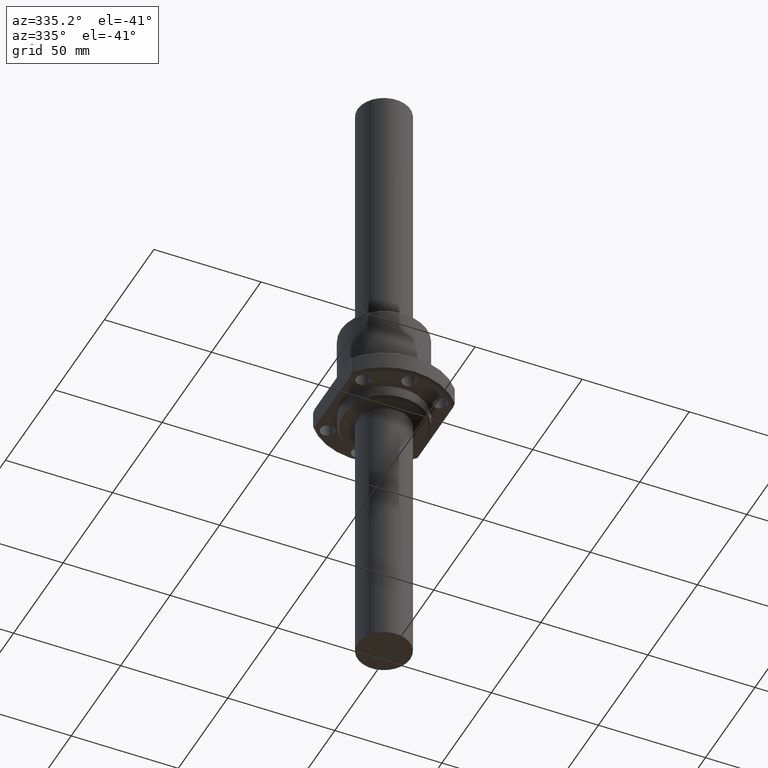
[diagram: clean part render]
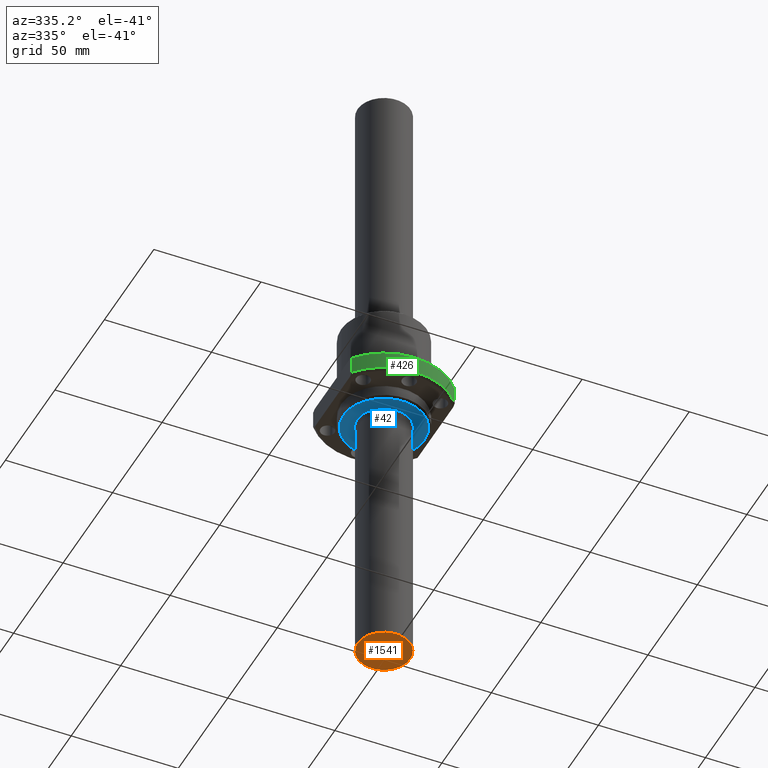
[diagram: same view with three faces highlighted in distinct colors, each labeled with its STEP entity id]
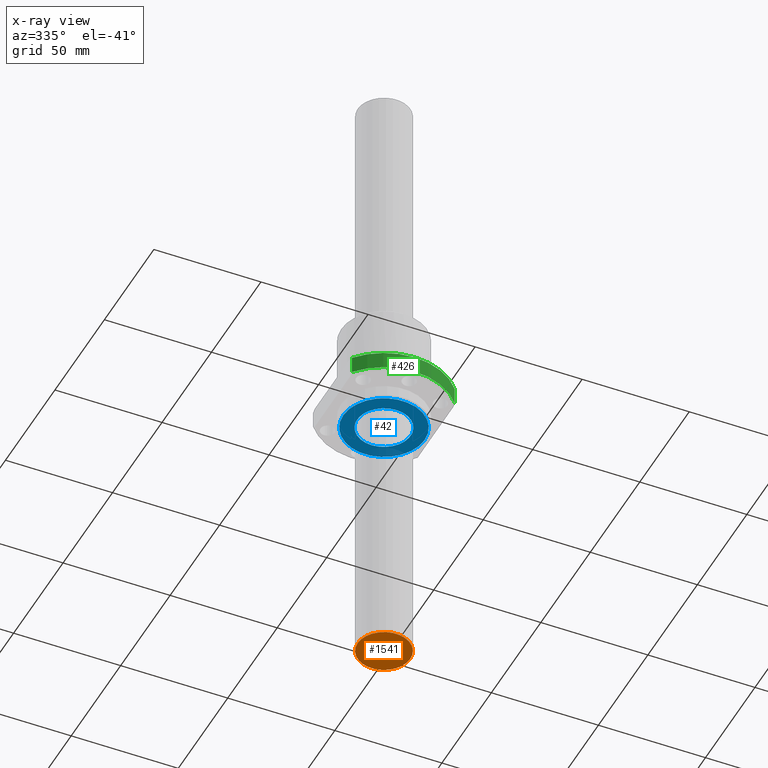
[diagram: x-ray of the same camera — body ghosted, the three highlighted faces saturated]
A machine part, auxiliary view with three faces highlighted in distinct colors.
The next image is the same camera in x-ray (body ghosted, the three faces saturated) — at least one of them is partly hidden behind the body in this view.
Their STEP definitions:

[orange] entity #1541 — the highlighted planar face has unit normal (0, 0, -1).
#19 = ORIENTED_EDGE ( 'NONE', *, *, #1188, .T. ) ;
#206 = VERTEX_POINT ( 'NONE', #611 ) ;
#224 = AXIS2_PLACEMENT_3D ( 'NONE', #381, #379, #376 ) ;
#264 = DIRECTION ( 'NONE',  ( 1.000000000000000000, 0.0000000000000000000, 0.0000000000000000000 ) ) ;
#272 = DIRECTION ( 'NONE',  ( -0.0000000000000000000, -0.0000000000000000000, -1.000000000000000000 ) ) ;
#275 = CARTESIAN_POINT ( 'NONE',  ( -12.30000000000000100, 1.506315562951244400E-015, -300.0000000000000000 ) ) ;
#278 = CARTESIAN_POINT ( 'NONE',  ( 0.0000000000000000000, 0.0000000000000000000, -300.0000000000000000 ) ) ;
#376 = DIRECTION ( 'NONE',  ( 1.000000000000000000, 0.0000000000000000000, 0.0000000000000000000 ) ) ;
#379 = DIRECTION ( 'NONE',  ( -0.0000000000000000000, -0.0000000000000000000, -1.000000000000000000 ) ) ;
#381 = CARTESIAN_POINT ( 'NONE',  ( 0.0000000000000000000, 0.0000000000000000000, -300.0000000000000000 ) ) ;
#611 = CARTESIAN_POINT ( 'NONE',  ( 12.30000000000000100, 0.0000000000000000000, -300.0000000000000000 ) ) ;
#755 = AXIS2_PLACEMENT_3D ( 'NONE', #1778, #1774, #1773 ) ;
#832 = FACE_OUTER_BOUND ( 'NONE', #1659, .T. ) ;
#1188 = EDGE_CURVE ( 'NONE', #1330, #206, #1718, .T. ) ;
#1239 = AXIS2_PLACEMENT_3D ( 'NONE', #278, #272, #264 ) ;
#1296 = ORIENTED_EDGE ( 'NONE', *, *, #1333, .T. ) ;
#1330 = VERTEX_POINT ( 'NONE', #275 ) ;
#1333 = EDGE_CURVE ( 'NONE', #206, #1330, #1550, .T. ) ;
#1541 = ADVANCED_FACE ( 'NONE', ( #832 ), #1787, .T. ) ;
#1550 = CIRCLE ( 'NONE', #1239, 12.30000000000000100 ) ;
#1659 = EDGE_LOOP ( 'NONE', ( #1296, #19 ) ) ;
#1718 = CIRCLE ( 'NONE', #224, 12.30000000000000100 ) ;
#1773 = DIRECTION ( 'NONE',  ( -1.000000000000000000, 0.0000000000000000000, 0.0000000000000000000 ) ) ;
#1774 = DIRECTION ( 'NONE',  ( 0.0000000000000000000, 0.0000000000000000000, -1.000000000000000000 ) ) ;
#1778 = CARTESIAN_POINT ( 'NONE',  ( 12.44760000000000000, -12.44760000000000000, -300.0000000000000000 ) ) ;
#1787 = PLANE ( 'NONE',  #755 ) ;

[blue] entity #42 — the highlighted planar face has unit normal (0, 0, 1).
#42 = ADVANCED_FACE ( 'NONE', ( #1691, #1439 ), #807, .F. ) ;
#74 = AXIS2_PLACEMENT_3D ( 'NONE', #313, #309, #283 ) ;
#85 = CIRCLE ( 'NONE', #939, 18.99999000000000000 ) ;
#249 = VERTEX_POINT ( 'NONE', #466 ) ;
#283 = DIRECTION ( 'NONE',  ( 0.0000000000000000000, -1.000000000000000000, -2.775557561562891400E-016 ) ) ;
#284 = CIRCLE ( 'NONE', #74, 12.50000000000000000 ) ;
#300 = EDGE_CURVE ( 'NONE', #249, #1653, #284, .T. ) ;
#309 = DIRECTION ( 'NONE',  ( 0.0000000000000000000, -2.775557561562891400E-016, 1.000000000000000000 ) ) ;
#313 = CARTESIAN_POINT ( 'NONE',  ( 0.0000000000000000000, -1.360023213492489600E-014, 0.0000000000000000000 ) ) ;
#364 = DIRECTION ( 'NONE',  ( 0.0000000000000000000, -1.000000000000000000, -2.775557561562891400E-016 ) ) ;
#365 = DIRECTION ( 'NONE',  ( 0.0000000000000000000, -2.775557561562891400E-016, 1.000000000000000000 ) ) ;
#374 = CARTESIAN_POINT ( 'NONE',  ( 0.0000000000000000000, -1.360023213492489600E-014, 0.0000000000000000000 ) ) ;
#466 = CARTESIAN_POINT ( 'NONE',  ( 1.530808498934191500E-015, 12.49999999999998800, 3.469446951953614200E-015 ) ) ;
#475 = ORIENTED_EDGE ( 'NONE', *, *, #1118, .F. ) ;
#498 = DIRECTION ( 'NONE',  ( -1.000000000000000000, 0.0000000000000000000, 0.0000000000000000000 ) ) ;
#500 = DIRECTION ( 'NONE',  ( 0.0000000000000000000, 0.0000000000000000000, -1.000000000000000000 ) ) ;
#505 = CARTESIAN_POINT ( 'NONE',  ( 0.0000000000000000000, 0.0000000000000000000, 0.0000000000000000000 ) ) ;
#567 = AXIS2_PLACEMENT_3D ( 'NONE', #505, #500, #498 ) ;
#655 = CARTESIAN_POINT ( 'NONE',  ( 18.99999000000000000, 2.388060033690539800E-015, 0.0000000000000000000 ) ) ;
#658 = ORIENTED_EDGE ( 'NONE', *, *, #1196, .F. ) ;
#719 = DIRECTION ( 'NONE',  ( -1.000000000000000000, 0.0000000000000000000, 0.0000000000000000000 ) ) ;
#720 = DIRECTION ( 'NONE',  ( 0.0000000000000000000, 0.0000000000000000000, -1.000000000000000000 ) ) ;
#721 = CARTESIAN_POINT ( 'NONE',  ( 0.0000000000000000000, 0.0000000000000000000, 0.0000000000000000000 ) ) ;
#728 = CARTESIAN_POINT ( 'NONE',  ( -18.99999000000000000, 0.0000000000000000000, 0.0000000000000000000 ) ) ;
#770 = DIRECTION ( 'NONE',  ( -1.000000000000000000, 0.0000000000000000000, 0.0000000000000000000 ) ) ;
#777 = DIRECTION ( 'NONE',  ( 0.0000000000000000000, 0.0000000000000000000, -1.000000000000000000 ) ) ;
#784 = ORIENTED_EDGE ( 'NONE', *, *, #300, .F. ) ;
#787 = CARTESIAN_POINT ( 'NONE',  ( 19.22798987999999900, -19.22798987999999900, 0.0000000000000000000 ) ) ;
#807 = PLANE ( 'NONE',  #1486 ) ;
#892 = VERTEX_POINT ( 'NONE', #728 ) ;
#897 = EDGE_CURVE ( 'NONE', #892, #971, #85, .T. ) ;
#899 = EDGE_LOOP ( 'NONE', ( #658, #784 ) ) ;
#939 = AXIS2_PLACEMENT_3D ( 'NONE', #721, #720, #719 ) ;
#971 = VERTEX_POINT ( 'NONE', #655 ) ;
#997 = ORIENTED_EDGE ( 'NONE', *, *, #897, .F. ) ;
#1118 = EDGE_CURVE ( 'NONE', #971, #892, #1779, .T. ) ;
#1196 = EDGE_CURVE ( 'NONE', #1653, #249, #1750, .T. ) ;
#1356 = AXIS2_PLACEMENT_3D ( 'NONE', #374, #365, #364 ) ;
#1439 = FACE_OUTER_BOUND ( 'NONE', #1756, .T. ) ;
#1486 = AXIS2_PLACEMENT_3D ( 'NONE', #787, #777, #770 ) ;
#1653 = VERTEX_POINT ( 'NONE', #1703 ) ;
#1691 = FACE_BOUND ( 'NONE', #899, .T. ) ;
#1703 = CARTESIAN_POINT ( 'NONE',  ( 0.0000000000000000000, -12.50000000000001400, -3.469446951953614200E-015 ) ) ;
#1750 = CIRCLE ( 'NONE', #1356, 12.50000000000000000 ) ;
#1756 = EDGE_LOOP ( 'NONE', ( #997, #475 ) ) ;
#1779 = CIRCLE ( 'NONE', #567, 18.99999000000000000 ) ;

[green] entity #426 — the highlighted cylindrical surface (partial cylindrical patch) has radius 31 mm, axis along (0, 0, -1).
#32 = CIRCLE ( 'NONE', #707, 30.99999979999999800 ) ;
#46 = ORIENTED_EDGE ( 'NONE', *, *, #1150, .F. ) ;
#130 = CARTESIAN_POINT ( 'NONE',  ( 24.00000000000000000, -19.62141671218366000, -14.99999390011035400 ) ) ;
#426 = ADVANCED_FACE ( 'NONE', ( #1568 ), #1116, .T. ) ;
#427 = VERTEX_POINT ( 'NONE', #1595 ) ;
#438 = DIRECTION ( 'NONE',  ( 0.0000000000000000000, 0.0000000000000000000, 1.000000000000000000 ) ) ;
#439 = CARTESIAN_POINT ( 'NONE',  ( -24.00000000000000000, -19.62141686999999700, -10.99999399999999900 ) ) ;
#440 = LINE ( 'NONE', #439, #484 ) ;
#484 = VECTOR ( 'NONE', #438, 1000.000000000000000 ) ;
#536 = DIRECTION ( 'NONE',  ( 1.000000000000000000, 0.0000000000000000000, 0.0000000000000000000 ) ) ;
#539 = DIRECTION ( 'NONE',  ( 0.0000000000000000000, 0.0000000000000000000, 1.000000000000000000 ) ) ;
#542 = CARTESIAN_POINT ( 'NONE',  ( 0.0000000000000000000, 0.0000000000000000000, -6.999994199999999700 ) ) ;
#559 = CARTESIAN_POINT ( 'NONE',  ( 24.00000000000000000, -19.62141685811987600, -6.999994192370172300 ) ) ;
#706 = CARTESIAN_POINT ( 'NONE',  ( -24.00000000000000000, -19.62141671218366000, -14.99999400000007200 ) ) ;
#707 = AXIS2_PLACEMENT_3D ( 'NONE', #542, #539, #536 ) ;
#768 = VECTOR ( 'NONE', #1633, 1000.000000000000000 ) ;
#823 = AXIS2_PLACEMENT_3D ( 'NONE', #1801, #1799, #1798 ) ;
#908 = VERTEX_POINT ( 'NONE', #706 ) ;
#1021 = VERTEX_POINT ( 'NONE', #559 ) ;
#1030 = ORIENTED_EDGE ( 'NONE', *, *, #1749, .F. ) ;
#1041 = EDGE_CURVE ( 'NONE', #427, #1021, #32, .T. ) ;
#1116 = CYLINDRICAL_SURFACE ( 'NONE', #1503, 30.99999979999999800 ) ;
#1150 = EDGE_CURVE ( 'NONE', #908, #427, #440, .T. ) ;
#1323 = EDGE_LOOP ( 'NONE', ( #1745, #46, #1767, #1030 ) ) ;
#1355 = CIRCLE ( 'NONE', #823, 30.99999979999999800 ) ;
#1383 = VERTEX_POINT ( 'NONE', #130 ) ;
#1503 = AXIS2_PLACEMENT_3D ( 'NONE', #1614, #1601, #1598 ) ;
#1525 = EDGE_CURVE ( 'NONE', #908, #1383, #1355, .T. ) ;
#1568 = FACE_OUTER_BOUND ( 'NONE', #1323, .T. ) ;
#1595 = CARTESIAN_POINT ( 'NONE',  ( -24.00000000000000000, -19.62141671218366000, -6.999994199889681700 ) ) ;
#1598 = DIRECTION ( 'NONE',  ( 1.000000000000000000, 0.0000000000000000000, 0.0000000000000000000 ) ) ;
#1601 = DIRECTION ( 'NONE',  ( 0.0000000000000000000, 0.0000000000000000000, 1.000000000000000000 ) ) ;
#1614 = CARTESIAN_POINT ( 'NONE',  ( 0.0000000000000000000, 0.0000000000000000000, -14.99999400000000100 ) ) ;
#1633 = DIRECTION ( 'NONE',  ( -0.0000000000000000000, -0.0000000000000000000, -1.000000000000000000 ) ) ;
#1635 = CARTESIAN_POINT ( 'NONE',  ( 24.00000000000000000, -19.62141686999999700, -10.99999399999999900 ) ) ;
#1639 = LINE ( 'NONE', #1635, #768 ) ;
#1745 = ORIENTED_EDGE ( 'NONE', *, *, #1041, .F. ) ;
#1749 = EDGE_CURVE ( 'NONE', #1021, #1383, #1639, .T. ) ;
#1767 = ORIENTED_EDGE ( 'NONE', *, *, #1525, .T. ) ;
#1798 = DIRECTION ( 'NONE',  ( 1.000000000000000000, 0.0000000000000000000, 2.294311708835852800E-015 ) ) ;
#1799 = DIRECTION ( 'NONE',  ( 0.0000000000000000000, 0.0000000000000000000, 1.000000000000000000 ) ) ;
#1801 = CARTESIAN_POINT ( 'NONE',  ( 0.0000000000000000000, 0.0000000000000000000, -14.99999400000007200 ) ) ;